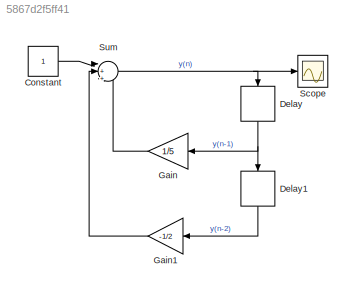
MODEL slx_5867d2f5ff41
KIND model
CONFIG AbsTol = auto
CONFIG EnableMultiTasking = off
CONFIG FixedStep = auto
CONFIG MaxStep = auto
CONFIG MinStep = auto
CONFIG RelTol = 1e-3
CONFIG SampleTimeConstraint = Unconstrained
CONFIG SolverName = VariableStepAuto
CONFIG StartTime = 0.0
CONFIG StopTime = 10.0
BLOCK [Constant] Constant
  SampleTime = 1
BLOCK [Delay] Delay
  DelayLength = 1
  InputPortMap = u0
  NameLocation = left
BLOCK [Delay] Delay1
  DelayLength = 1
  InputPortMap = u0
  NameLocation = left
BLOCK [Gain] Gain
  Gain = 1/5
  NameLocation = top
BLOCK [Gain] Gain1
  Gain = -1/2
  NameLocation = top
BLOCK [Scope] Scope
  Floating = off
  NumInputPorts = 1
  ScopeSpecificationString = Simulink.scopes.TimeScopeBlockCfg('CurrentConfiguration', extmgr.ConfigurationSet(extmgr.Configuration('Core','General UI',true,'FigureColor',[1 1 1]),extmgr.Configuration('Core','Source UI',true),extmgr.Configuration('Sources','WiredSimulink',true,'DataLogging',true,'DataLoggingVariableName','ED_Simulink','DataLoggingSaveFormat','Array'),extmgr.Configuration('Visuals','Time Domain',true,'Serializ...<+1616ch>
BLOCK [Sum] Sum
  Inputs = |+++
LINE Constant:1 -> Sum:1
LINE Delay1:1 -> Gain1:1
NET Delay:1 -> Delay1:1, Gain:1
LINE Gain1:1 -> Sum:2
LINE Gain:1 -> Sum:3
NET Sum:1 -> Delay:1, Scope:1
note: NET lines group one-source signal fan-out (src -> all destinations, sorted); 1:1 wires keep LINE
